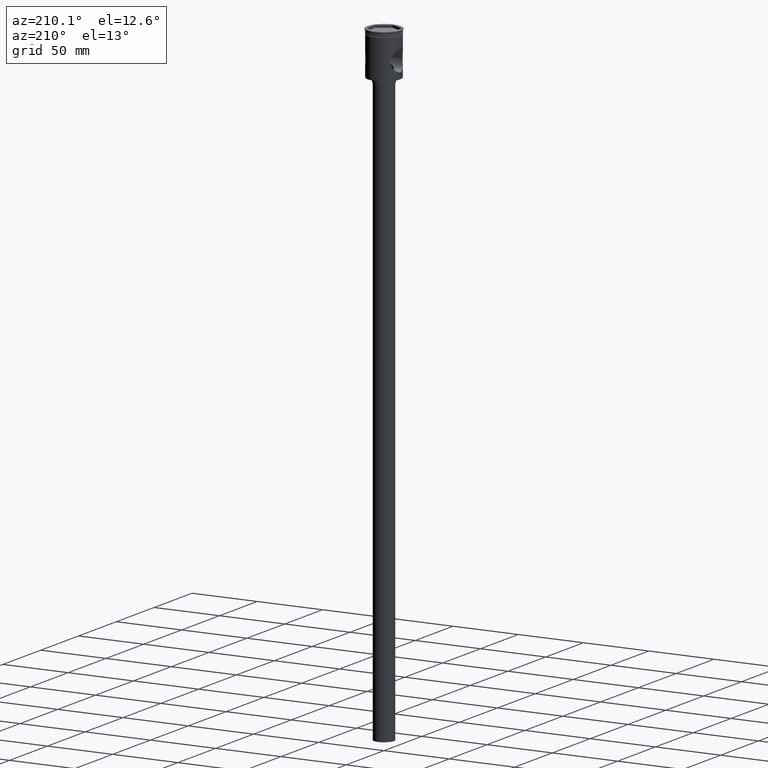
[diagram: clean part render]
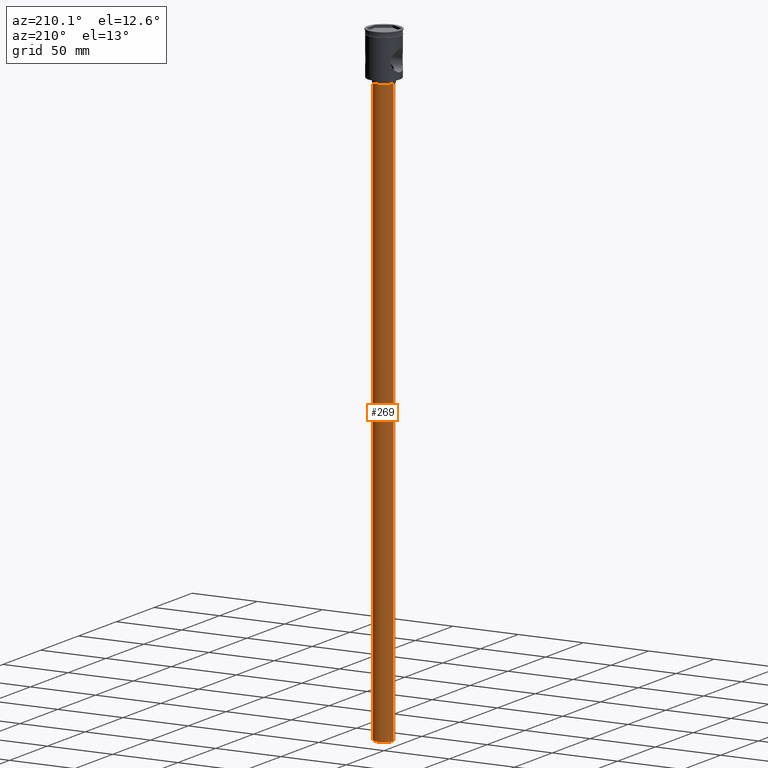
[diagram: same view with one face highlighted and labeled with its STEP entity id]
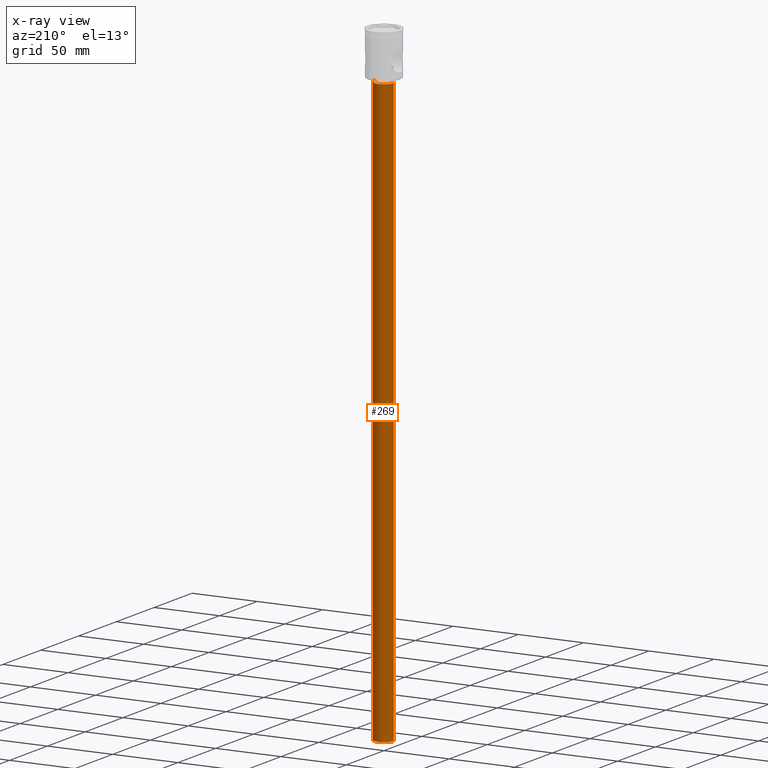
[diagram: x-ray of the same camera — body ghosted, the highlighted face saturated]
A machine part, auxiliary view. The second image highlights one B-rep face of the part: STEP entity #269.
The next image is the same camera in x-ray: the body ghosted, the highlighted face saturated — about 0% of this face is hidden behind the body in this view.
In plain terms, the highlighted cylindrical surface (edge-blend (fillet) strip) has radius 7.5 mm, axis along (-0, -0, 1).
Its self-contained STEP definition (entity closure, byte-faithful):
#48 = DIRECTION ( 'NONE',  ( -1.000000000000000000, 0.000000000000000000, 0.000000000000000000 ) ) ;
#49 = VECTOR ( 'NONE', #813, 1000.000000000000000 ) ;
#70 = FACE_OUTER_BOUND ( 'NONE', #1234, .T. ) ;
#78 = LINE ( 'NONE', #1501, #49 ) ;
#83 = VERTEX_POINT ( 'NONE', #227 ) ;
#86 = CARTESIAN_POINT ( 'NONE',  ( 0.000000000000000000, 0.000000000000000000, -483.5000000000000568 ) ) ;
#171 = ORIENTED_EDGE ( 'NONE', *, *, #982, .F. ) ;
#178 = CIRCLE ( 'NONE', #675, 7.500000000000000000 ) ;
#180 = EDGE_CURVE ( 'NONE', #1025, #1118, #1376, .T. ) ;
#195 = ORIENTED_EDGE ( 'NONE', *, *, #344, .T. ) ;
#227 = CARTESIAN_POINT ( 'NONE',  ( -7.500000000000000000, 9.184850993605147944E-16, -483.5000000000000568 ) ) ;
#250 = DIRECTION ( 'NONE',  ( 0.000000000000000000, 0.000000000000000000, -1.000000000000000000 ) ) ;
#257 = EDGE_CURVE ( 'NONE', #83, #336, #78, .T. ) ;
#269 = ADVANCED_FACE ( 'NONE', ( #70 ), #1039, .T. ) ;
#299 = CARTESIAN_POINT ( 'NONE',  ( 7.500000000000000000, 0.000000000000000000, -483.5000000000000568 ) ) ;
#336 = VERTEX_POINT ( 'NONE', #1193 ) ;
#342 = CARTESIAN_POINT ( 'NONE',  ( 0.000000000000000000, 0.000000000000000000, -36.50000000000000711 ) ) ;
#344 = EDGE_CURVE ( 'NONE', #336, #1118, #747, .T. ) ;
#385 = DIRECTION ( 'NONE',  ( -0.000000000000000000, -0.000000000000000000, 1.000000000000000000 ) ) ;
#417 = CARTESIAN_POINT ( 'NONE',  ( 7.500000000000000000, 0.000000000000000000, -483.5000000000000568 ) ) ;
#479 = ORIENTED_EDGE ( 'NONE', *, *, #180, .F. ) ;
#606 = DIRECTION ( 'NONE',  ( -1.000000000000000000, 0.000000000000000000, 0.000000000000000000 ) ) ;
#675 = AXIS2_PLACEMENT_3D ( 'NONE', #1266, #1134, #48 ) ;
#747 = CIRCLE ( 'NONE', #1270, 7.500000000000000000 ) ;
#813 = DIRECTION ( 'NONE',  ( -0.000000000000000000, -0.000000000000000000, 1.000000000000000000 ) ) ;
#982 = EDGE_CURVE ( 'NONE', #83, #1025, #178, .T. ) ;
#1025 = VERTEX_POINT ( 'NONE', #417 ) ;
#1039 = CYLINDRICAL_SURFACE ( 'NONE', #1078, 7.500000000000000000 ) ;
#1078 = AXIS2_PLACEMENT_3D ( 'NONE', #86, #1511, #1395 ) ;
#1102 = VECTOR ( 'NONE', #385, 1000.000000000000000 ) ;
#1118 = VERTEX_POINT ( 'NONE', #1214 ) ;
#1134 = DIRECTION ( 'NONE',  ( 0.000000000000000000, 0.000000000000000000, -1.000000000000000000 ) ) ;
#1193 = CARTESIAN_POINT ( 'NONE',  ( -7.500000000000000000, 9.184850993605147944E-16, -36.50000000000000711 ) ) ;
#1214 = CARTESIAN_POINT ( 'NONE',  ( 7.500000000000000000, 0.000000000000000000, -36.50000000000000711 ) ) ;
#1234 = EDGE_LOOP ( 'NONE', ( #171, #1515, #195, #479 ) ) ;
#1266 = CARTESIAN_POINT ( 'NONE',  ( 0.000000000000000000, 0.000000000000000000, -483.5000000000000568 ) ) ;
#1270 = AXIS2_PLACEMENT_3D ( 'NONE', #342, #250, #606 ) ;
#1376 = LINE ( 'NONE', #299, #1102 ) ;
#1395 = DIRECTION ( 'NONE',  ( 1.000000000000000000, 0.000000000000000000, 0.000000000000000000 ) ) ;
#1501 = CARTESIAN_POINT ( 'NONE',  ( -7.500000000000000000, 9.184850993605147944E-16, -483.5000000000000568 ) ) ;
#1511 = DIRECTION ( 'NONE',  ( -0.000000000000000000, -0.000000000000000000, 1.000000000000000000 ) ) ;
#1515 = ORIENTED_EDGE ( 'NONE', *, *, #257, .T. ) ;